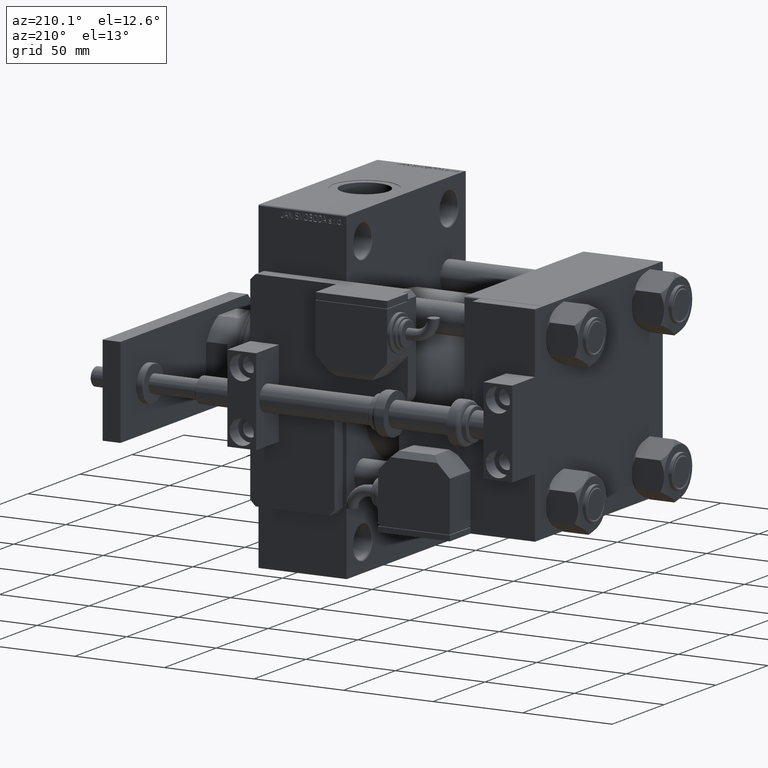
[diagram: clean part render]
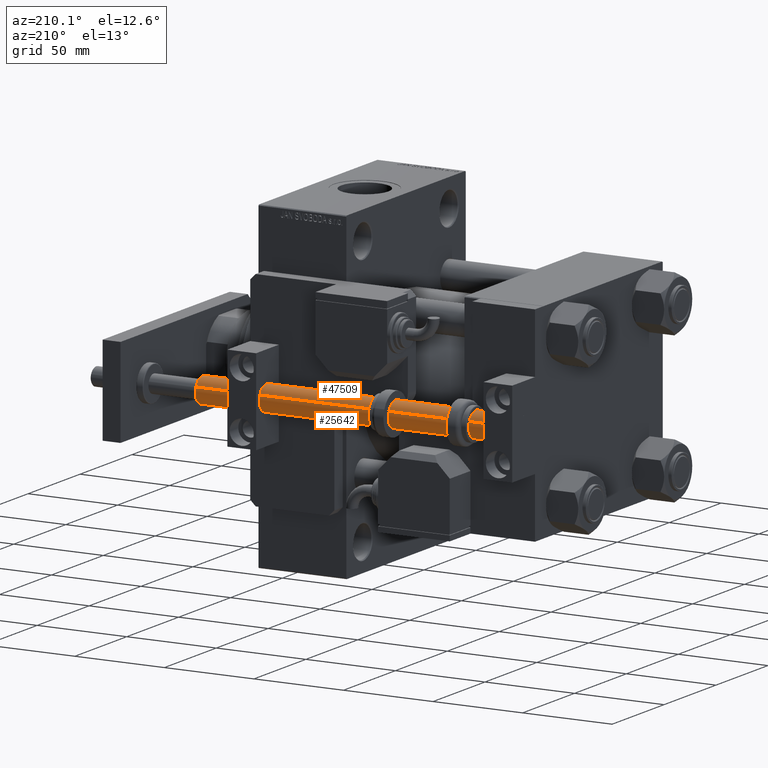
[diagram: same view with one multi-face feature highlighted, each face labeled with its STEP entity id]
A machine part, auxiliary view. The highlighted faces form ONE feature: a constant-radius fillet chain: 2 tangent blend faces with common blend radius 7 mm. The faces share edges in the B-rep.
Their STEP definitions:
[1] entity #47509 (Cylinder):
#69 = CARTESIAN_POINT ( 'NONE',  ( 0.000000000000000000, 0.000000000000000000, 179.0000000000000000 ) ) ;
#1429 = CARTESIAN_POINT ( 'NONE',  ( 7.000000000000000000, 8.572527594031471218E-16, 179.0000000000000000 ) ) ;
#2584 = VECTOR ( 'NONE', #44371, 1000.000000000000000 ) ;
#4035 = EDGE_LOOP ( 'NONE', ( #14065, #15655, #30531, #13940 ) ) ;
#4833 = FACE_OUTER_BOUND ( 'NONE', #4035, .T. ) ;
#5513 = CARTESIAN_POINT ( 'NONE',  ( 7.000000000000000000, 8.572527594031471218E-16, 179.0000000000000000 ) ) ;
#7885 = AXIS2_PLACEMENT_3D ( 'NONE', #53241, #10324, #27439 ) ;
#9288 = VERTEX_POINT ( 'NONE', #27079 ) ;
#9888 = EDGE_CURVE ( 'NONE', #11771, #9288, #43723, .T. ) ;
#10159 = LINE ( 'NONE', #23051, #2584 ) ;
#10324 = DIRECTION ( 'NONE',  ( -0.000000000000000000, -0.000000000000000000, 1.000000000000000000 ) ) ;
#11771 = VERTEX_POINT ( 'NONE', #19230 ) ;
#13940 = ORIENTED_EDGE ( 'NONE', *, *, #9888, .T. ) ;
#14055 = EDGE_CURVE ( 'NONE', #26496, #11771, #10159, .T. ) ;
#14065 = ORIENTED_EDGE ( 'NONE', *, *, #50220, .F. ) ;
#15655 = ORIENTED_EDGE ( 'NONE', *, *, #33141, .F. ) ;
#17752 = CYLINDRICAL_SURFACE ( 'NONE', #32723, 7.000000000000000000 ) ;
#18771 = CIRCLE ( 'NONE', #32242, 7.000000000000000000 ) ;
#19230 = CARTESIAN_POINT ( 'NONE',  ( -7.000000000000000000, 0.000000000000000000, 0.3000000000001890044 ) ) ;
#21679 = DIRECTION ( 'NONE',  ( -1.000000000000000000, 0.000000000000000000, 0.000000000000000000 ) ) ;
#22666 = CARTESIAN_POINT ( 'NONE',  ( 0.000000000000000000, 0.000000000000000000, 179.0000000000000000 ) ) ;
#23051 = CARTESIAN_POINT ( 'NONE',  ( -7.000000000000000000, 0.000000000000000000, 179.0000000000000000 ) ) ;
#26496 = VERTEX_POINT ( 'NONE', #34362 ) ;
#27079 = CARTESIAN_POINT ( 'NONE',  ( 7.000000000000000000, 8.572527594031471218E-16, 0.3000000000001890044 ) ) ;
#27439 = DIRECTION ( 'NONE',  ( 1.000000000000000000, 0.000000000000000000, 0.000000000000000000 ) ) ;
#29983 = VECTOR ( 'NONE', #40150, 1000.000000000000000 ) ;
#30531 = ORIENTED_EDGE ( 'NONE', *, *, #14055, .T. ) ;
#32242 = AXIS2_PLACEMENT_3D ( 'NONE', #22666, #40314, #51833 ) ;
#32723 = AXIS2_PLACEMENT_3D ( 'NONE', #69, #42999, #21679 ) ;
#33141 = EDGE_CURVE ( 'NONE', #26496, #44673, #18771, .T. ) ;
#34362 = CARTESIAN_POINT ( 'NONE',  ( -7.000000000000000000, 0.000000000000000000, 179.0000000000000000 ) ) ;
#40150 = DIRECTION ( 'NONE',  ( -0.000000000000000000, -0.000000000000000000, -1.000000000000000000 ) ) ;
#40314 = DIRECTION ( 'NONE',  ( 0.000000000000000000, 0.000000000000000000, 1.000000000000000000 ) ) ;
#40702 = LINE ( 'NONE', #1429, #29983 ) ;
#42999 = DIRECTION ( 'NONE',  ( -0.000000000000000000, -0.000000000000000000, -1.000000000000000000 ) ) ;
#43723 = CIRCLE ( 'NONE', #7885, 7.000000000000000000 ) ;
#44371 = DIRECTION ( 'NONE',  ( -0.000000000000000000, -0.000000000000000000, -1.000000000000000000 ) ) ;
#44673 = VERTEX_POINT ( 'NONE', #5513 ) ;
#47509 = ADVANCED_FACE ( 'NONE', ( #4833 ), #17752, .T. ) ;
#50220 = EDGE_CURVE ( 'NONE', #44673, #9288, #40702, .T. ) ;
#51833 = DIRECTION ( 'NONE',  ( 1.000000000000000000, 0.000000000000000000, 0.000000000000000000 ) ) ;
#53241 = CARTESIAN_POINT ( 'NONE',  ( 0.000000000000000000, 0.000000000000000000, 0.3000000000001890044 ) ) ;
[2] entity #25642 (Cylinder):
#1429 = CARTESIAN_POINT ( 'NONE',  ( 7.000000000000000000, 8.572527594031471218E-16, 179.0000000000000000 ) ) ;
#1853 = CIRCLE ( 'NONE', #15286, 7.000000000000000000 ) ;
#2584 = VECTOR ( 'NONE', #44371, 1000.000000000000000 ) ;
#5513 = CARTESIAN_POINT ( 'NONE',  ( 7.000000000000000000, 8.572527594031471218E-16, 179.0000000000000000 ) ) ;
#9288 = VERTEX_POINT ( 'NONE', #27079 ) ;
#9703 = EDGE_LOOP ( 'NONE', ( #25281, #53590, #49265, #44231 ) ) ;
#10082 = AXIS2_PLACEMENT_3D ( 'NONE', #12356, #46569, #42378 ) ;
#10159 = LINE ( 'NONE', #23051, #2584 ) ;
#11235 = CARTESIAN_POINT ( 'NONE',  ( 0.000000000000000000, 0.000000000000000000, 179.0000000000000000 ) ) ;
#11771 = VERTEX_POINT ( 'NONE', #19230 ) ;
#12356 = CARTESIAN_POINT ( 'NONE',  ( 0.000000000000000000, 0.000000000000000000, 179.0000000000000000 ) ) ;
#14055 = EDGE_CURVE ( 'NONE', #26496, #11771, #10159, .T. ) ;
#15286 = AXIS2_PLACEMENT_3D ( 'NONE', #23828, #20180, #21255 ) ;
#18177 = EDGE_CURVE ( 'NONE', #9288, #11771, #1853, .T. ) ;
#19230 = CARTESIAN_POINT ( 'NONE',  ( -7.000000000000000000, 0.000000000000000000, 0.3000000000001890044 ) ) ;
#19653 = FACE_OUTER_BOUND ( 'NONE', #9703, .T. ) ;
#20180 = DIRECTION ( 'NONE',  ( -0.000000000000000000, -0.000000000000000000, 1.000000000000000000 ) ) ;
#21255 = DIRECTION ( 'NONE',  ( 1.000000000000000000, 0.000000000000000000, 0.000000000000000000 ) ) ;
#23051 = CARTESIAN_POINT ( 'NONE',  ( -7.000000000000000000, 0.000000000000000000, 179.0000000000000000 ) ) ;
#23828 = CARTESIAN_POINT ( 'NONE',  ( 0.000000000000000000, 0.000000000000000000, 0.3000000000001890044 ) ) ;
#25281 = ORIENTED_EDGE ( 'NONE', *, *, #42805, .F. ) ;
#25642 = ADVANCED_FACE ( 'NONE', ( #19653 ), #37605, .T. ) ;
#26496 = VERTEX_POINT ( 'NONE', #34362 ) ;
#27079 = CARTESIAN_POINT ( 'NONE',  ( 7.000000000000000000, 8.572527594031471218E-16, 0.3000000000001890044 ) ) ;
#28908 = DIRECTION ( 'NONE',  ( -0.000000000000000000, -0.000000000000000000, -1.000000000000000000 ) ) ;
#29983 = VECTOR ( 'NONE', #40150, 1000.000000000000000 ) ;
#33402 = DIRECTION ( 'NONE',  ( -1.000000000000000000, 0.000000000000000000, 0.000000000000000000 ) ) ;
#34362 = CARTESIAN_POINT ( 'NONE',  ( -7.000000000000000000, 0.000000000000000000, 179.0000000000000000 ) ) ;
#36974 = CIRCLE ( 'NONE', #10082, 7.000000000000000000 ) ;
#37605 = CYLINDRICAL_SURFACE ( 'NONE', #40600, 7.000000000000000000 ) ;
#40150 = DIRECTION ( 'NONE',  ( -0.000000000000000000, -0.000000000000000000, -1.000000000000000000 ) ) ;
#40600 = AXIS2_PLACEMENT_3D ( 'NONE', #11235, #28908, #33402 ) ;
#40702 = LINE ( 'NONE', #1429, #29983 ) ;
#42378 = DIRECTION ( 'NONE',  ( 1.000000000000000000, 0.000000000000000000, 0.000000000000000000 ) ) ;
#42805 = EDGE_CURVE ( 'NONE', #44673, #26496, #36974, .T. ) ;
#44231 = ORIENTED_EDGE ( 'NONE', *, *, #14055, .F. ) ;
#44371 = DIRECTION ( 'NONE',  ( -0.000000000000000000, -0.000000000000000000, -1.000000000000000000 ) ) ;
#44673 = VERTEX_POINT ( 'NONE', #5513 ) ;
#46569 = DIRECTION ( 'NONE',  ( 0.000000000000000000, 0.000000000000000000, 1.000000000000000000 ) ) ;
#49265 = ORIENTED_EDGE ( 'NONE', *, *, #18177, .T. ) ;
#50220 = EDGE_CURVE ( 'NONE', #44673, #9288, #40702, .T. ) ;
#53590 = ORIENTED_EDGE ( 'NONE', *, *, #50220, .T. ) ;